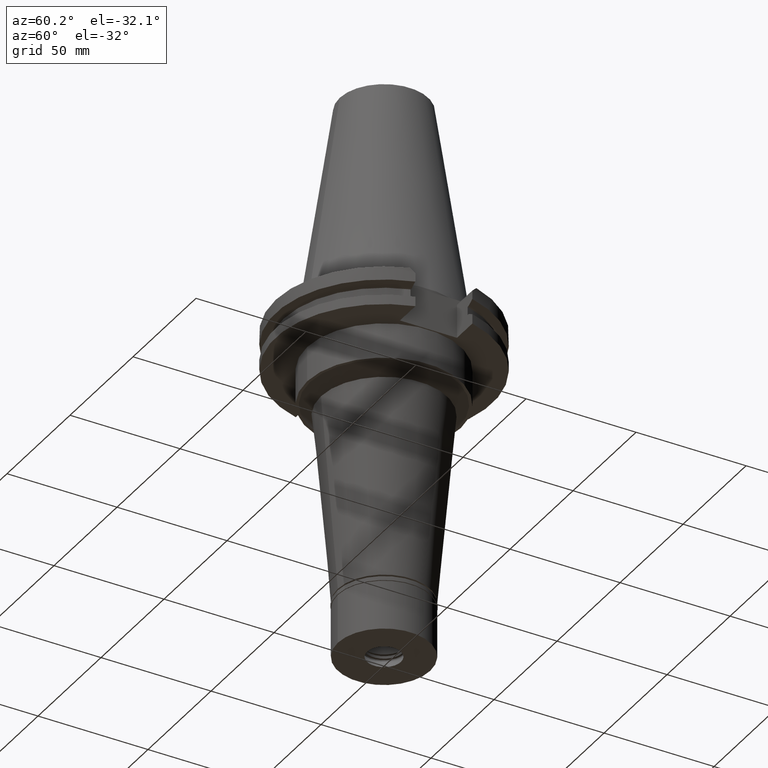
[diagram: clean part render]
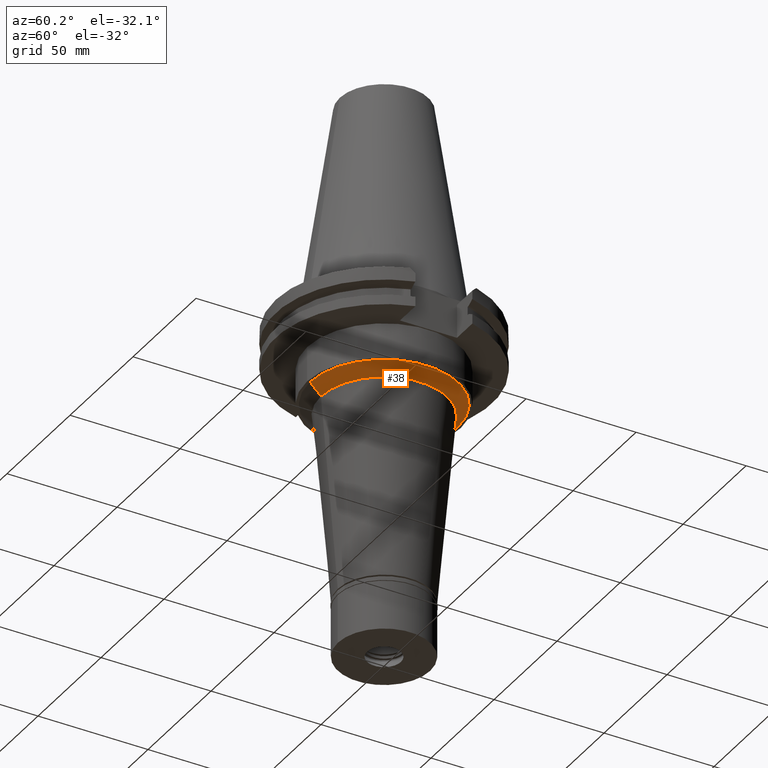
[diagram: same view with one face highlighted and labeled with its STEP entity id]
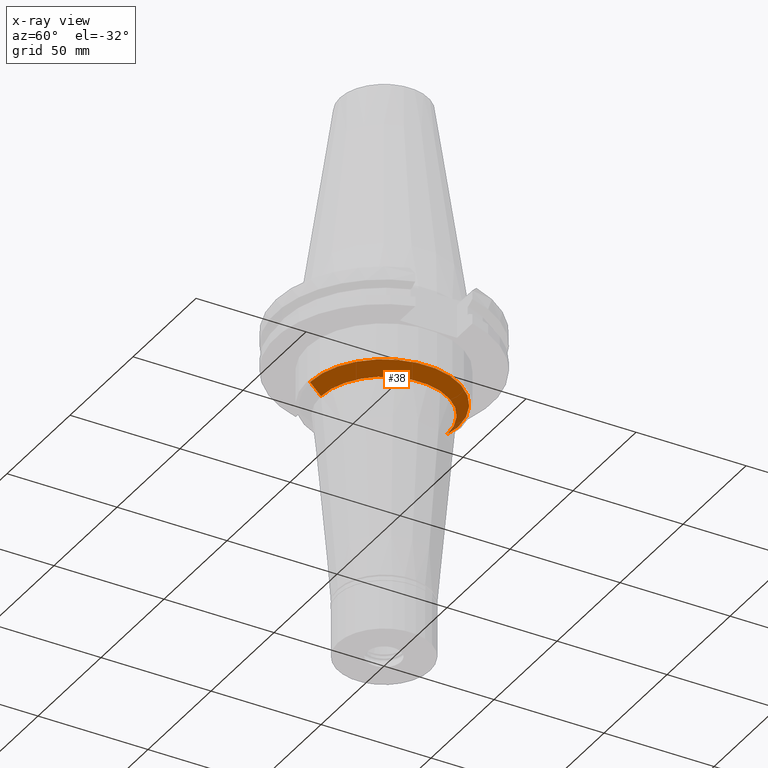
[diagram: x-ray of the same camera — body ghosted, the highlighted face saturated]
A machine part, auxiliary view. The second image highlights one B-rep face of the part: STEP entity #38.
The next image is the same camera in x-ray: the body ghosted, the highlighted face saturated — about 0% of this face is hidden behind the body in this view.
In plain terms, the highlighted conical surface has half-angle 45 deg.
Its self-contained STEP definition (entity closure, byte-faithful):
#38 = ADVANCED_FACE ( 'NONE', ( #85 ), #146, .T. ) ;
#85 = FACE_OUTER_BOUND ( 'NONE', #796, .T. ) ;
#129 = DIRECTION ( 'NONE',  ( 0.0000000000000000000, -0.7071067811862969954, -0.7071067811867980391 ) ) ;
#146 = CONICAL_SURFACE ( 'NONE', #2600, 31.13776032580999953, 0.7853981633972997312 ) ;
#156 = ORIENTED_EDGE ( 'NONE', *, *, #799, .T. ) ;
#219 = CARTESIAN_POINT ( 'NONE',  ( 0.0000000000000000000, -33.63776032580999953, -35.00000000000000000 ) ) ;
#252 = EDGE_CURVE ( 'NONE', #2519, #3210, #3155, .T. ) ;
#350 = VERTEX_POINT ( 'NONE', #2870 ) ;
#470 = DIRECTION ( 'NONE',  ( 0.0000000000000000000, -1.000000000000000000, 0.0000000000000000000 ) ) ;
#611 = CARTESIAN_POINT ( 'NONE',  ( 0.0000000000000000000, 0.0000000000000000000, -35.00000000000000000 ) ) ;
#796 = EDGE_LOOP ( 'NONE', ( #810, #156, #964, #1737 ) ) ;
#799 = EDGE_CURVE ( 'NONE', #350, #1554, #1745, .T. ) ;
#810 = ORIENTED_EDGE ( 'NONE', *, *, #1605, .T. ) ;
#951 = CARTESIAN_POINT ( 'NONE',  ( 0.0000000000000000000, 28.63776032580999953, -40.00000000000000000 ) ) ;
#964 = ORIENTED_EDGE ( 'NONE', *, *, #2706, .T. ) ;
#1066 = DIRECTION ( 'NONE',  ( 0.0000000000000000000, 0.0000000000000000000, -1.000000000000000000 ) ) ;
#1212 = CARTESIAN_POINT ( 'NONE',  ( 0.0000000000000000000, 33.63776032580999953, -35.00000000000000000 ) ) ;
#1213 = DIRECTION ( 'NONE',  ( 0.0000000000000000000, 0.0000000000000000000, 1.000000000000000000 ) ) ;
#1554 = VERTEX_POINT ( 'NONE', #2512 ) ;
#1593 = CIRCLE ( 'NONE', #2571, 28.63776032581999686 ) ;
#1605 = EDGE_CURVE ( 'NONE', #2519, #350, #1616, .T. ) ;
#1611 = DIRECTION ( 'NONE',  ( 0.0000000000000000000, 1.000000000000000000, 0.0000000000000000000 ) ) ;
#1616 = CIRCLE ( 'NONE', #2146, 33.63776032580999953 ) ;
#1628 = CARTESIAN_POINT ( 'NONE',  ( 0.0000000000000000000, 0.0000000000000000000, -37.50000000000000000 ) ) ;
#1737 = ORIENTED_EDGE ( 'NONE', *, *, #252, .F. ) ;
#1745 = LINE ( 'NONE', #219, #1772 ) ;
#1772 = VECTOR ( 'NONE', #2251, 1000.000000000000000 ) ;
#1796 = CARTESIAN_POINT ( 'NONE',  ( 0.0000000000000000000, 33.63776032580999953, -35.00000000000000000 ) ) ;
#2103 = DIRECTION ( 'NONE',  ( 0.0000000000000000000, 1.000000000000000000, 0.0000000000000000000 ) ) ;
#2146 = AXIS2_PLACEMENT_3D ( 'NONE', #611, #1066, #2103 ) ;
#2209 = VECTOR ( 'NONE', #129, 1000.000000000000000 ) ;
#2251 = DIRECTION ( 'NONE',  ( 0.0000000000000000000, 0.7071067811862969954, -0.7071067811867980391 ) ) ;
#2512 = CARTESIAN_POINT ( 'NONE',  ( 0.0000000000000000000, -28.63776032580999953, -40.00000000000000000 ) ) ;
#2519 = VERTEX_POINT ( 'NONE', #1796 ) ;
#2571 = AXIS2_PLACEMENT_3D ( 'NONE', #3049, #1213, #470 ) ;
#2600 = AXIS2_PLACEMENT_3D ( 'NONE', #1628, #2904, #1611 ) ;
#2706 = EDGE_CURVE ( 'NONE', #1554, #3210, #1593, .T. ) ;
#2870 = CARTESIAN_POINT ( 'NONE',  ( 0.0000000000000000000, -33.63776032580999953, -35.00000000000000000 ) ) ;
#2904 = DIRECTION ( 'NONE',  ( 0.0000000000000000000, 0.0000000000000000000, 1.000000000000000000 ) ) ;
#3049 = CARTESIAN_POINT ( 'NONE',  ( 0.0000000000000000000, 0.0000000000000000000, -40.00000000000000000 ) ) ;
#3155 = LINE ( 'NONE', #1212, #2209 ) ;
#3210 = VERTEX_POINT ( 'NONE', #951 ) ;